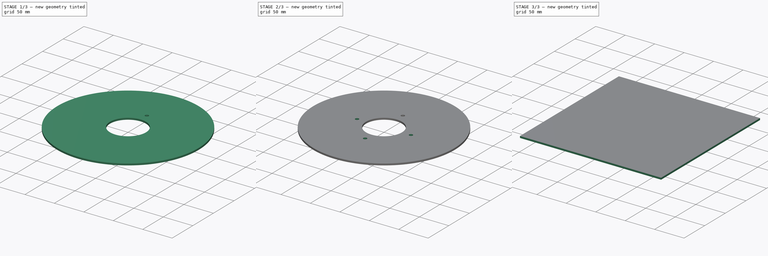
[diagram: build sequence overview — one tinted view per stage of 3, left to right]
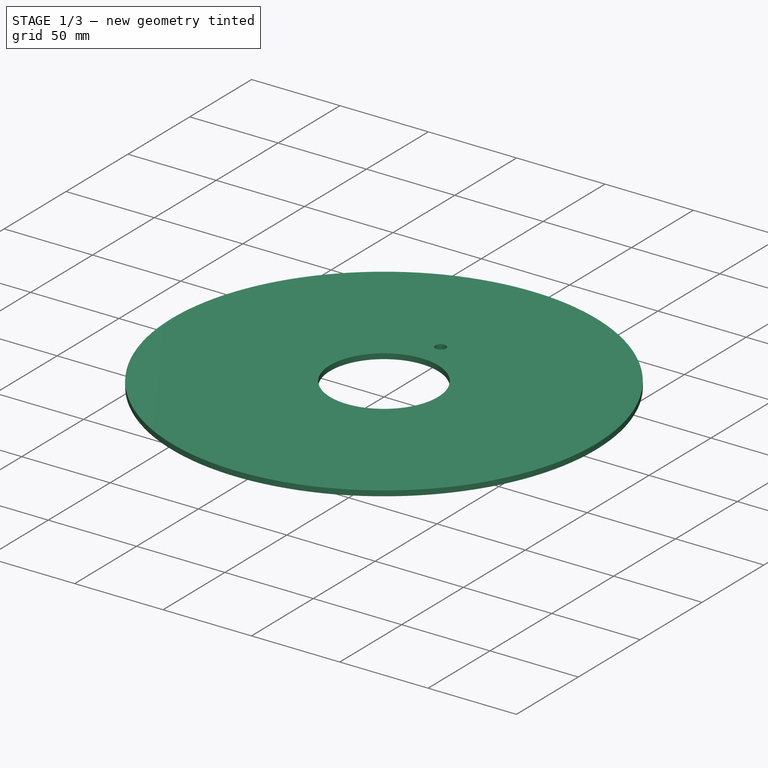
[diagram: stage 1 of 3 — iso view after this stage's code; geometry added in this stage tinted green]
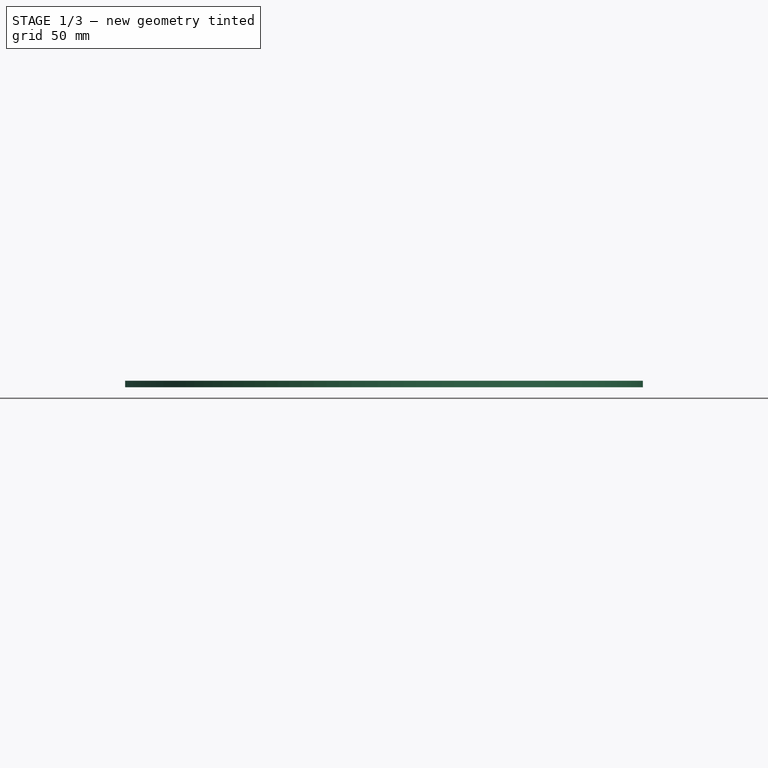
[diagram: stage 1 of 3 — front view after this stage's code; geometry added in this stage tinted green]
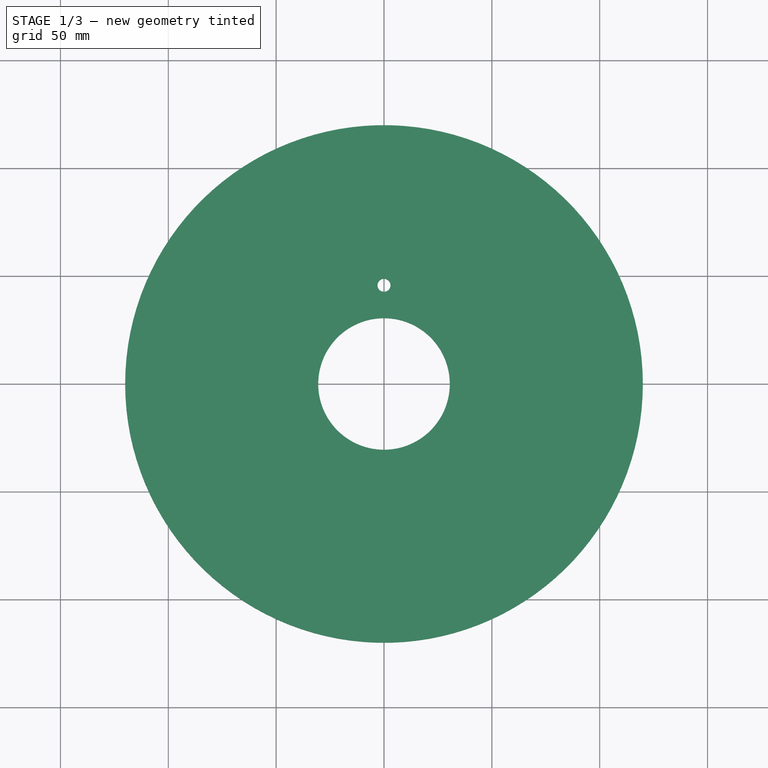
[diagram: stage 1 of 3 — top view after this stage's code; geometry added in this stage tinted green]
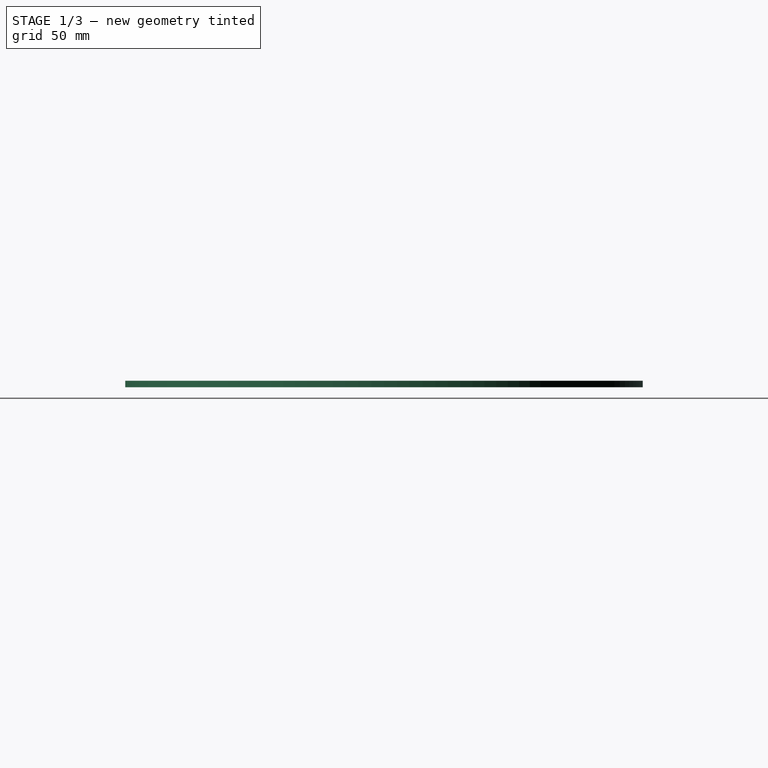
[diagram: stage 1 of 3 — right view after this stage's code; geometry added in this stage tinted green]
FCSTD DOCUMENT  (FreeCAD 0.19R20406 (Git))
Label: DustMaster
License: Creative Commons Attribution-ShareAlike
LicenseURL: http://creativecommons.org/licenses/by-sa/4.0/
objects: Path::FeaturePython×5, Sketcher::SketchObject×2, App::DocumentObjectGroup×2, Part::FeaturePython×2, PartDesign::Pad×1, PartDesign::Pocket×1, PartDesign::PolarPattern×1, PartDesign::Body×1, App::FeaturePython×1, Path::FeatureCompoundPython×1
note: 11 computed .brp shape members not serialized (recipe doc carries the construction recipe); baked Part::Feature solids carry a one-line shape summary decoded from their .brp

FEATURE [Sketcher::SketchObject] Sketch
  MapMode = 5
  Support = -> [XY_Plane]
  sketch-geometry (2):
    g0: Circle CenterX=0 CenterY=0 CenterZ=0 NormalX=0 NormalY=0 NormalZ=1 AngleXU=0 Radius=120
    g1: Circle CenterX=0 CenterY=0 CenterZ=0 NormalX=0 NormalY=0 NormalZ=1 AngleXU=0 Radius=30.5
  constraints (4):
    c: Coincident(g0,g-1)
    c: Coincident(g1,g0)
    c: Radius(g0) = 120
    c: Diameter(g1) = 61
FEATURE [PartDesign::Pad] Pad
  Length = 3
  Length2 = 100
  Profile = -> Sketch
  Type = 0
FEATURE [Sketcher::SketchObject] Sketch001
  MapMode = 5
  Placement = pos=(0,0,3) rot=(0,0,1;0rad)
  Support = -> [Pad]
  expr: Constraints[1] = 91.5 / 2
  sketch-geometry (1):
    g0: Circle CenterX=0 CenterY=45.75 CenterZ=0 NormalX=0 NormalY=0 NormalZ=1 AngleXU=0 Radius=3
  constraints (3):
    c: PointOnObject(g0,g-2)
    c: DistanceY(g-1,g0) = 45.75
    c: Diameter(g0) = 6
FEATURE [PartDesign::Pocket] Pocket
  BaseFeature = -> Pad
  Length = 5
  Length2 = 100
  Profile = -> Sketch001
  Type = 1
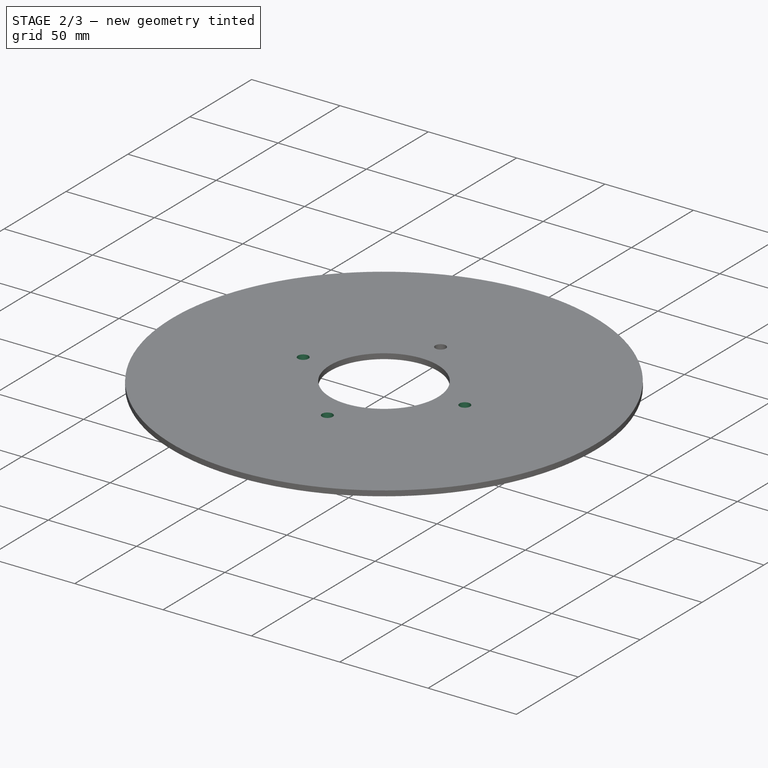
[diagram: stage 2 of 3 — iso view after this stage's code; geometry added in this stage tinted green]
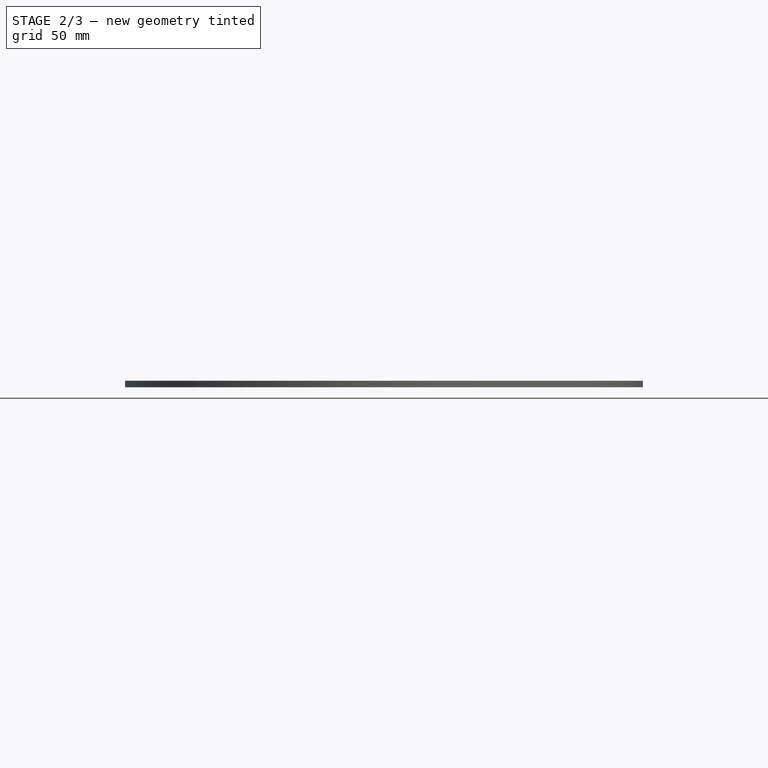
[diagram: stage 2 of 3 — front view after this stage's code; geometry added in this stage tinted green]
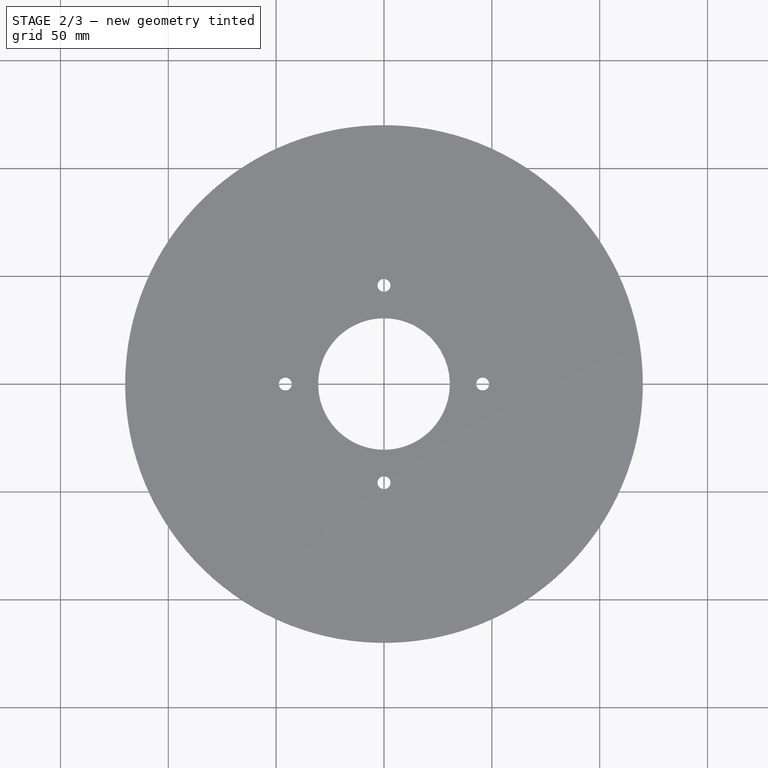
[diagram: stage 2 of 3 — top view after this stage's code; geometry added in this stage tinted green]
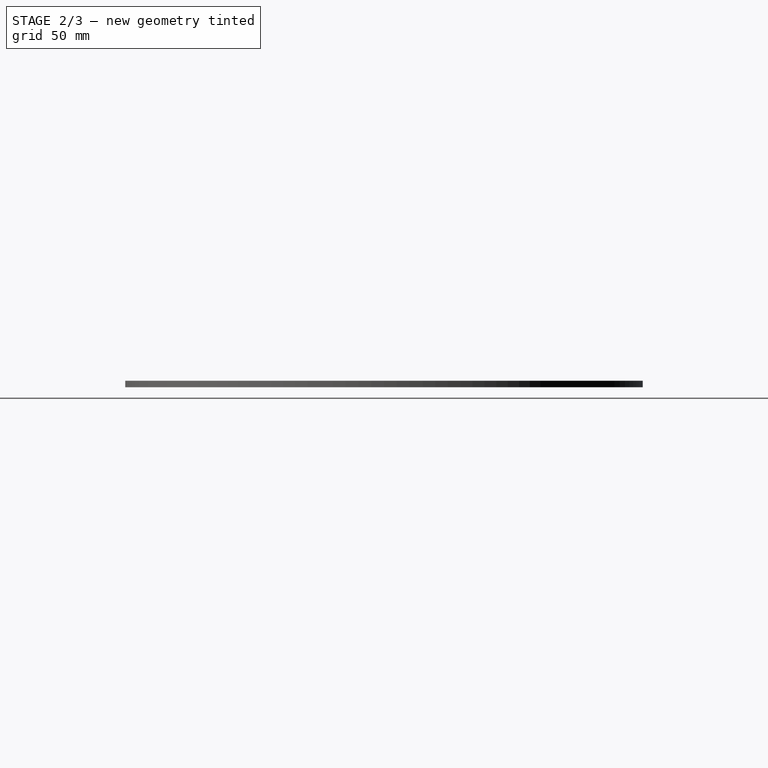
[diagram: stage 2 of 3 — right view after this stage's code; geometry added in this stage tinted green]
FEATURE [PartDesign::PolarPattern] PolarPattern
  Angle = 360
  Axis = -> Sketch001 [N_Axis]
  BaseFeature = -> Pocket
  Occurrences = 4
  Originals = -> [Pocket]
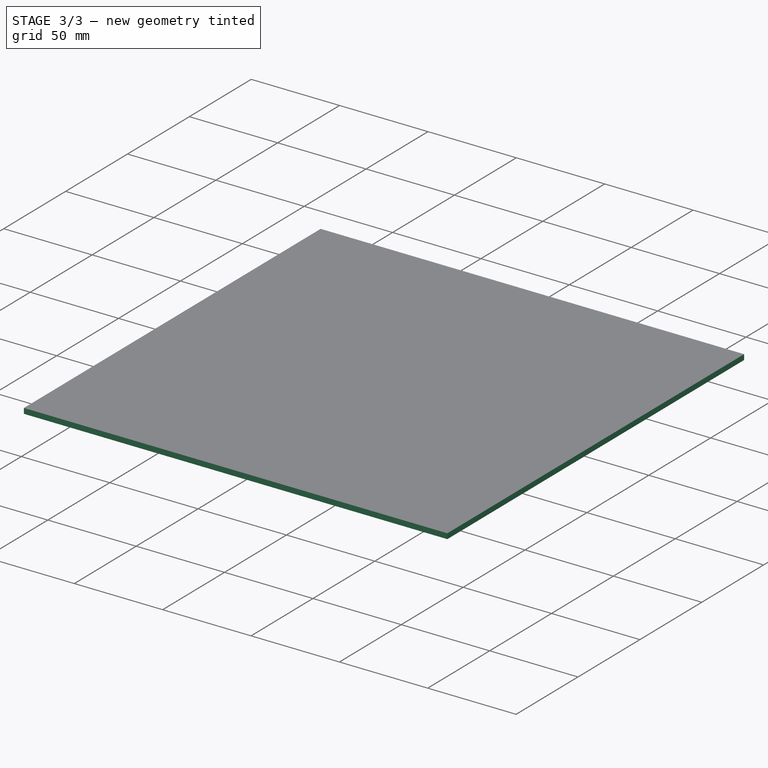
[diagram: stage 3 of 3 — iso view after this stage's code; geometry added in this stage tinted green]
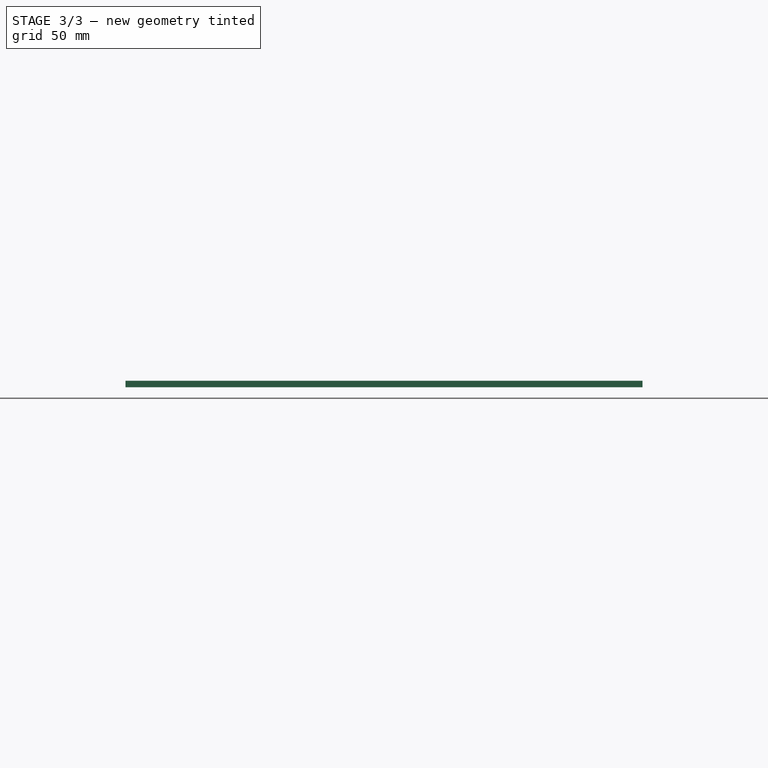
[diagram: stage 3 of 3 — front view after this stage's code; geometry added in this stage tinted green]
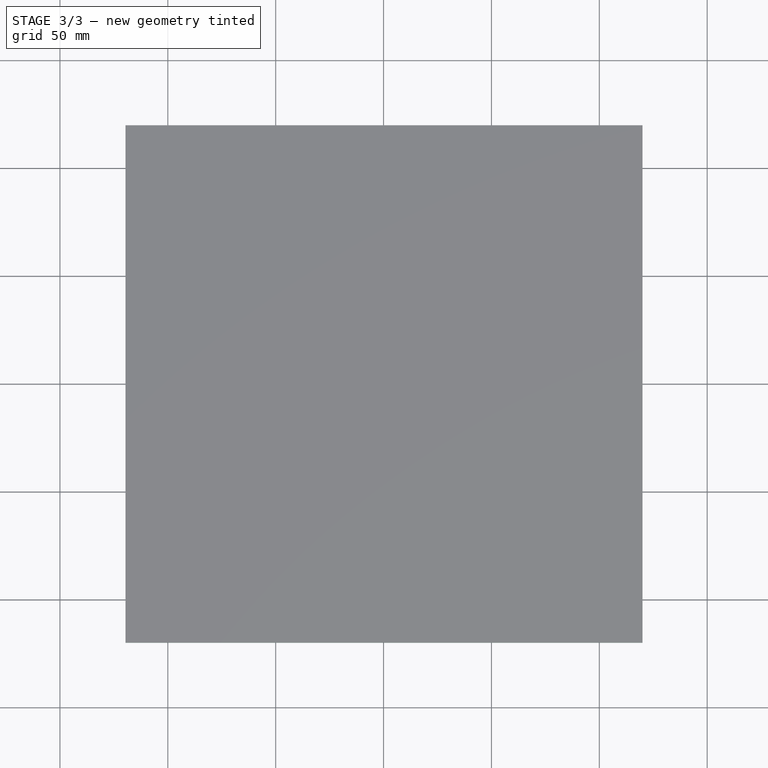
[diagram: stage 3 of 3 — top view after this stage's code; geometry added in this stage tinted green]
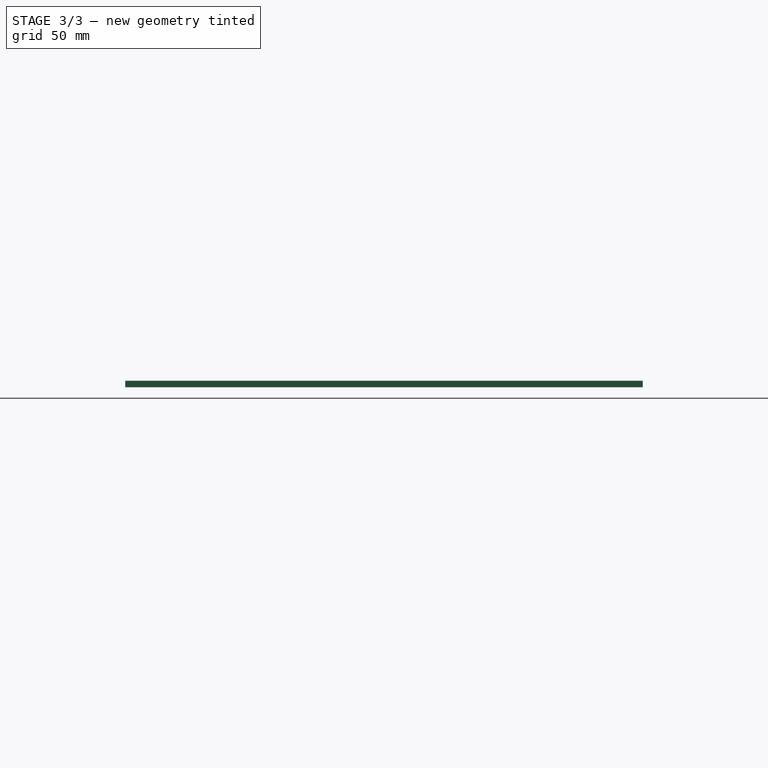
[diagram: stage 3 of 3 — right view after this stage's code; geometry added in this stage tinted green]
FEATURE [PartDesign::Body] Body
  Group = -> [Sketch,Pad,Sketch001,Pocket,PolarPattern]
  Origin = -> Origin
  Tip = -> PolarPattern
FEATURE [App::DocumentObjectGroup] Group
FEATURE [App::FeaturePython] SetupSheet  # Path/CAM operation (typed FeaturePython)
  ClearanceHeightExpression = OpStockZMax+SetupSheet.ClearanceHeightOffset
  ClearanceHeightOffset = 10
  CoolantMode = 0
  CoolantModes = None | Flood | Mist
  FinalDepthExpression = -0.2mm
  HorizRapid = 33.33
  SafeHeightExpression = OpStockZMax+SetupSheet.SafeHeightOffset
  SafeHeightOffset = 12
  StartDepthExpression = 3.2mm
  StepDownExpression = 0.3
  VertRapid = 16.66
FEATURE [Part::FeaturePython] Clone  label="Model-Body"  # Draft clone (typed FeaturePython)
  AttacherType = Attacher::AttachEngine3D
  Fuse = false
  Objects = -> [Body]
  PathResource = Model
  Scale = (1,1,1)
FEATURE [App::DocumentObjectGroup] Model
  Group = -> [Clone]
FEATURE [Path::FeaturePython] T3__AluminiumMill  label="T3: AluminiumMill"  # Path/CAM operation (typed FeaturePython)
  HorizFeed = 30
  HorizRapid = 33.3
  SpindleDir = 0
  SpindleSpeed = 17000
  ToolNumber = 3
  VertFeed = 6.66
  VertRapid = 16.66
  expr: HorizFeed = 30mm / s
  expr: VertRapid = SetupSheet.VertRapid
FEATURE [Part::FeaturePython] Stock001  # WARN: FeaturePython — macro-defined, semantics opaque (R4)
  Base = -> Model
  ExtXneg = 0
  ExtXpos = 0
  ExtYneg = 0
  ExtYpos = 0
  ExtZneg = 0
  ExtZpos = 0
  Placement = pos=(-119.611,-119.903,0) rot=(0,0,1;0rad)
  StockType = FromBase
FEATURE [Path::FeaturePython] Helix  # Path/CAM operation (typed FeaturePython)
  Active = true
  Base = -> [Clone]
  ClearanceHeight = 13
  CoolantMode = None
  Direction = 0
  EnableRotation = 0
  FinalDepth = -0.2
  OpFinalDepth = 0
  OpStartDepth = 3
  OpStockZMax = 3
  OpStockZMin = 0
  OpToolDiameter = 3
  SafeHeight = 15
  StartDepth = 3.2
  StartRadius = 0
  StartSide = 0
  StepDown = 0.5
  StepOver = 75
  ToolController = -> T3__AluminiumMill
  expr: StartDepth = 3.2mm
  expr: FinalDepth = -0.2mm
  expr: SafeHeight = OpStockZMax + SetupSheet.SafeHeightOffset
  expr: ClearanceHeight = OpStockZMax + SetupSheet.ClearanceHeightOffset
  expr: StepDown = 0.5mm
FEATURE [Path::FeaturePython] Profile_Edges  # Path/CAM operation (typed FeaturePython)
  Active = true
  AreaParams:
    Tolerance = 1e-07
    FitArcs = True
    Simplify = False
    CleanDistance = 0.0
    Accuracy = 0.01
    Unit = 1.0
    MinArcPoints = 4
    MaxArcPoints = 100
    ClipperScale = 10000000.0
    Fill = 0
    Coplanar = 0
    Reorient = True
    Outline = False
    Explode = False
    OpenMode = 0
    Deflection = 0.01
    SubjectFill = 0
    ClipFill = 0
    Offset = -1.5
    ExtraPass = 0
    Stepover = 0.0
    LastStepover = 0.0
    JoinType = 0
    EndType = 0
    MiterLimit = 2.0
    RoundPrecision = 0.0
    PocketMode = 0
    ToolRadius = 1.0
    PocketExtraOffset = 0.0
    PocketStepover = 0.0
    PocketLastStepover = 0.0
    FromCenter = False
    Angle = 45.0
    AngleShift = 0.0
    Shift = 0.0
    Thicken = False
    SectionCount = -1
    Stepdown = 1.0
    SectionOffset = 0.0
    SectionTolerance = 1e-06
    SectionMode = 2
    Project = False
  Base = -> [Clone]
  ClearanceHeight = 13
  CoolantMode = None
  Direction = 0
  EnableRotation = 0
  FinalDepth = -0.2
  JoinType = 0
  MiterLimit = 0.1
  OffsetExtra = 0
  OpFinalDepth = 3
  OpStartDepth = 3.5
  OpStockZMax = 3
  OpStockZMin = 0
  OpToolDiameter = 3
  PathParams = {'orientation': 1, 'feedrate': 30.0, 'feedrate_v': 6.66, 'verbose': True, 'resume_height': 15.0, 'retraction': 13.0, 'return_end': True, 'preamble': False}
  SafeHeight = 15
  Side = 1
  StartDepth = 3.2
  StartPoint = (0,0,0)
  StepDown = 0.5
  ToolController = -> T3__AluminiumMill
  UseComp = true
  UseStartPoint = false
  expr: StartDepth = 3.2mm
  expr: FinalDepth = -0.2mm
  expr: SafeHeight = OpStockZMax + SetupSheet.SafeHeightOffset
  expr: ClearanceHeight = OpStockZMax + SetupSheet.ClearanceHeightOffset
  expr: StepDown = 0.5mm
FEATURE [Path::FeaturePython] DressupTag  # Path/CAM operation (typed FeaturePython)
  Angle = 45
  Base = -> Profile_Edges
  Height = 2
  Positions = (4) [(28.2899,6.37623,0),(17.8957,-22.8192,0),(-18.326,-22.4751,0),(-22.4751,18.326,0)]
  Radius = 0
  SegmentationFactor = 50
  Width = 5
FEATURE [Path::FeatureCompoundPython] Operations  # Path/CAM operation (typed FeaturePython)
  Group = -> [Helix,DressupTag]
  UsePlacements = false
FEATURE [Path::FeaturePython] Job  # Path/CAM operation (typed FeaturePython)
  Fixtures = G54
  GeometryTolerance = 0.01
  Model = -> Model
  Operations = -> Operations
  OrderOutputBy = 0
  PostProcessor = 1
  PostProcessorOutputFile = gcode/lock_plate2x1.ngc
  SetupSheet = -> SetupSheet
  SplitOutput = false
  Stock = -> Stock001
  ToolController = -> [T3__AluminiumMill]
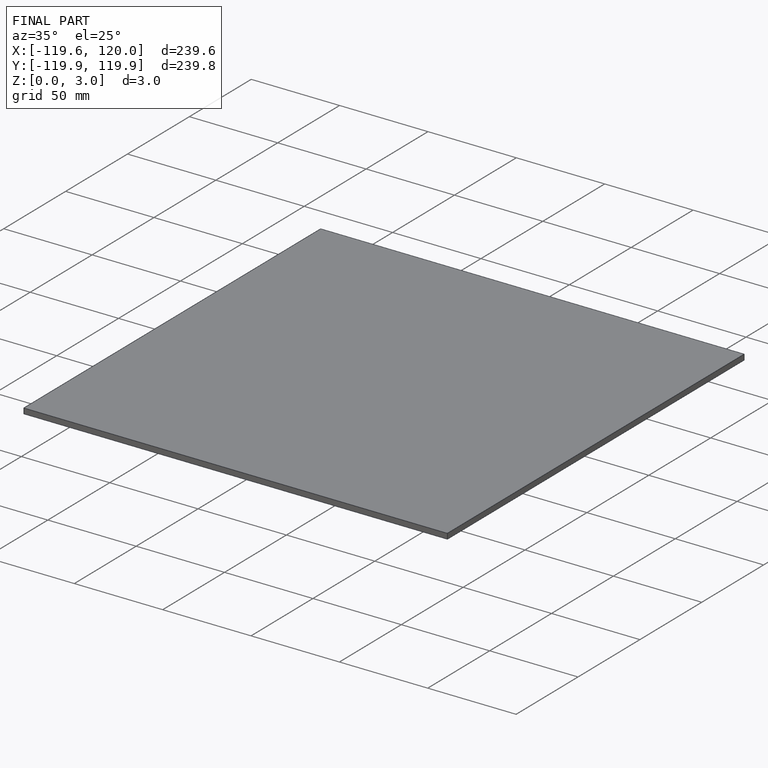
[diagram: finished part — iso view with bounding-box wireframe]
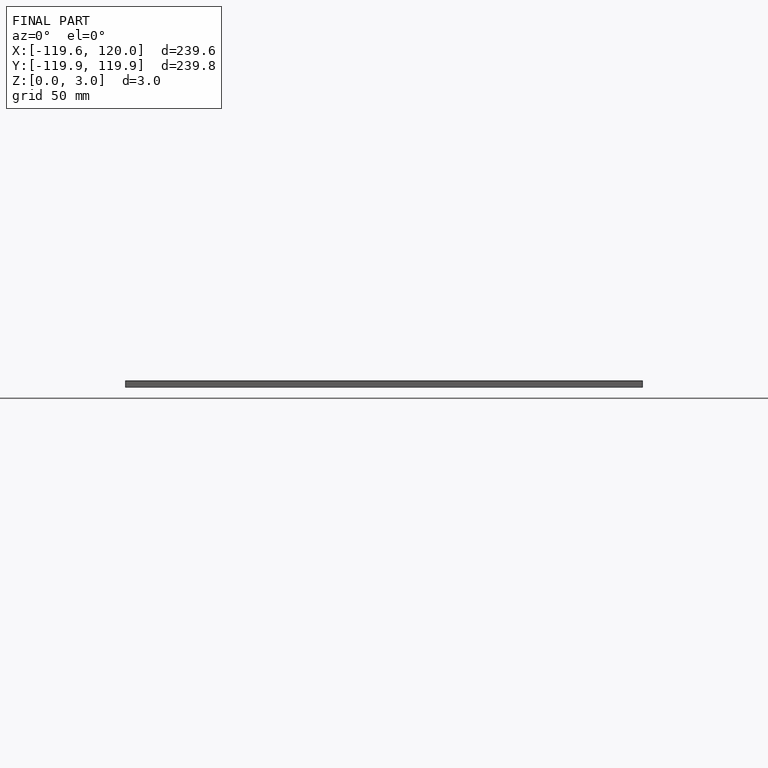
[diagram: finished part — front view with bounding-box wireframe]
